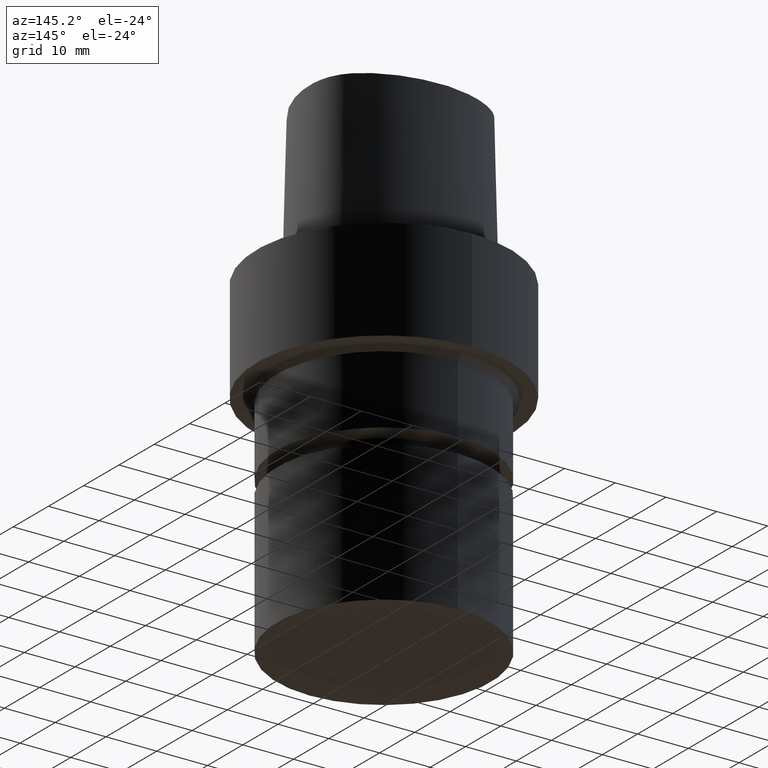
[diagram: clean part render]
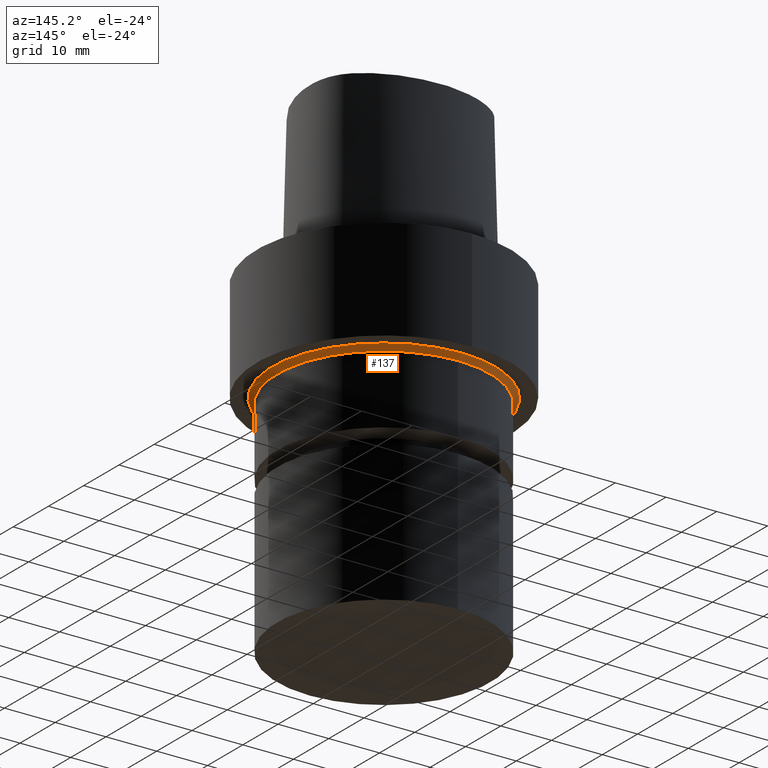
[diagram: same view with one face highlighted and labeled with its STEP entity id]
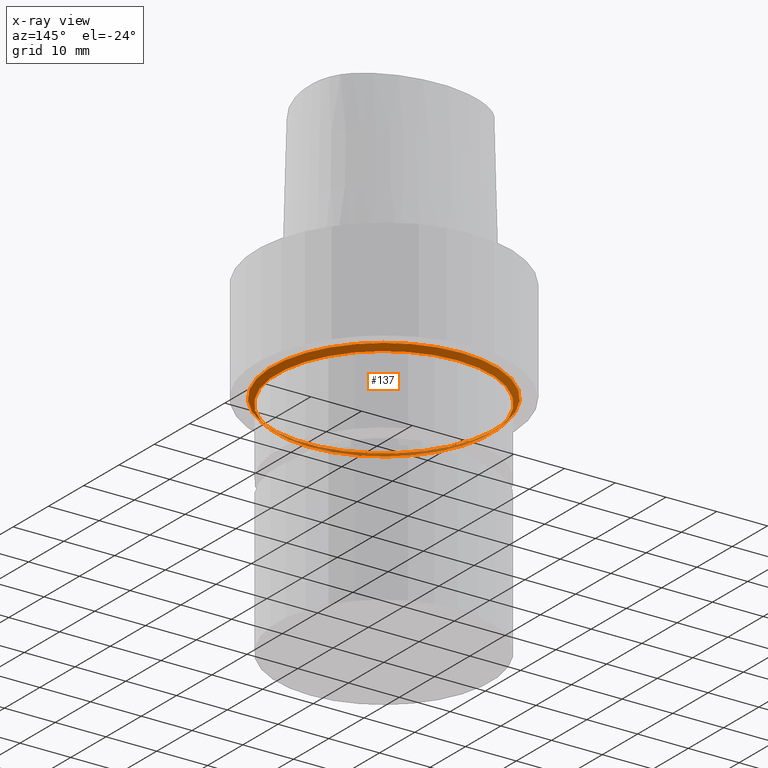
[diagram: x-ray of the same camera — body ghosted, the highlighted face saturated]
A machine part, auxiliary view. The second image highlights one B-rep face of the part: STEP entity #137.
The next image is the same camera in x-ray: the body ghosted, the highlighted face saturated — about 19% of this face is hidden behind the body in this view.
In plain terms, the highlighted conical surface has half-angle 45 deg.
Its self-contained STEP definition (entity closure, byte-faithful):
#78=EDGE_CURVE('Unnamed[1]',#188,#188,#189,.T.);
#86=EDGE_CURVE('Unnamed[1]',#200,#200,#201,.T.);
#137=ADVANCED_FACE('Unnamed[1]',(#273,#274),#275,.T.);
#188=VERTEX_POINT('',#330);
#189=CIRCLE('',#331,21.0000000000003);
#200=VERTEX_POINT('',#345);
#201=CIRCLE('',#346,22.0000000000006);
#273=FACE_BOUND('',#965,.T.);
#274=FACE_BOUND('',#966,.T.);
#275=CONICAL_SURFACE('',#967,21.5000000000004,0.785398163397448);
#330=CARTESIAN_POINT('',(1.28587913910474E-015,21.0000000000003,-21.0000000000003));
#331=AXIS2_PLACEMENT_3D('',#1011,#1012,#1013);
#345=CARTESIAN_POINT('',(1.22464679914735E-015,22.0000000000006,-20.0));
#346=AXIS2_PLACEMENT_3D('',#1025,#1026,#1027);
#965=EDGE_LOOP('',(#1094));
#966=EDGE_LOOP('',(#1095));
#967=AXIS2_PLACEMENT_3D('',#1096,#1097,#1098);
#1011=CARTESIAN_POINT('',(1.28587913910474E-015,2.57175827820947E-015,-21.0000000000003));
#1012=DIRECTION('',(6.12323399573677E-017,1.22464679914735E-016,-1.0));
#1013=DIRECTION('',(-1.23259516440783E-032,1.0,1.22464679914735E-016));
#1025=CARTESIAN_POINT('',(1.22464679914735E-015,2.44929359829471E-015,-20.0));
#1026=DIRECTION('',(6.12323399573677E-017,1.22464679914735E-016,-1.0));
#1027=DIRECTION('',(-1.23259516440783E-032,1.0,1.22464679914735E-016));
#1094=ORIENTED_EDGE('',*,*,#78,.F.);
#1095=ORIENTED_EDGE('',*,*,#86,.T.);
#1096=CARTESIAN_POINT('',(1.25526296912604E-015,2.51052593825209E-015,-20.5000000000001));
#1097=DIRECTION('',(-6.12323399573677E-017,-1.22464679914735E-016,1.0));
#1098=DIRECTION('',(-1.23259516440783E-032,1.0,1.22464679914735E-016));